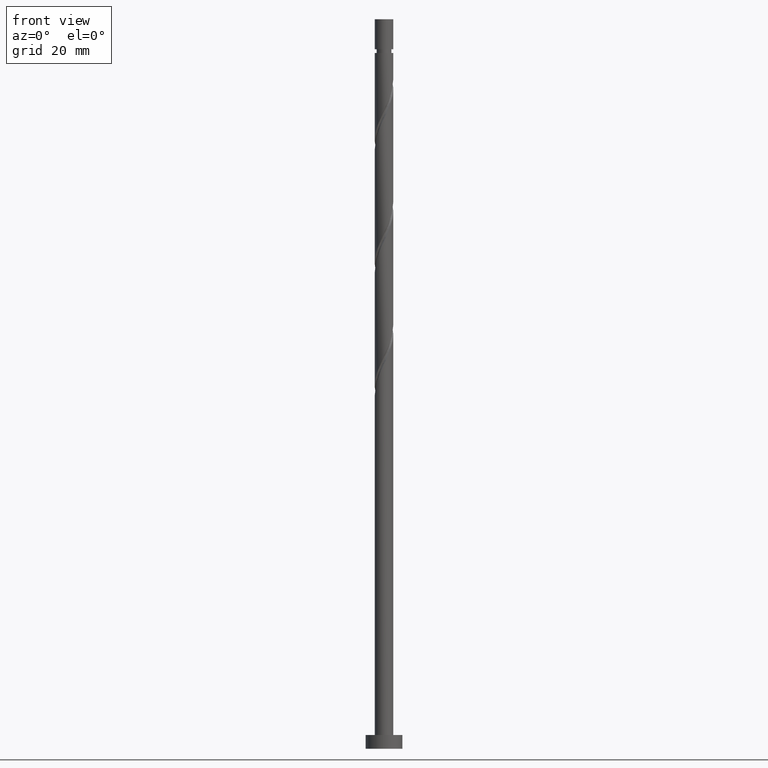
[diagram: clean part render]
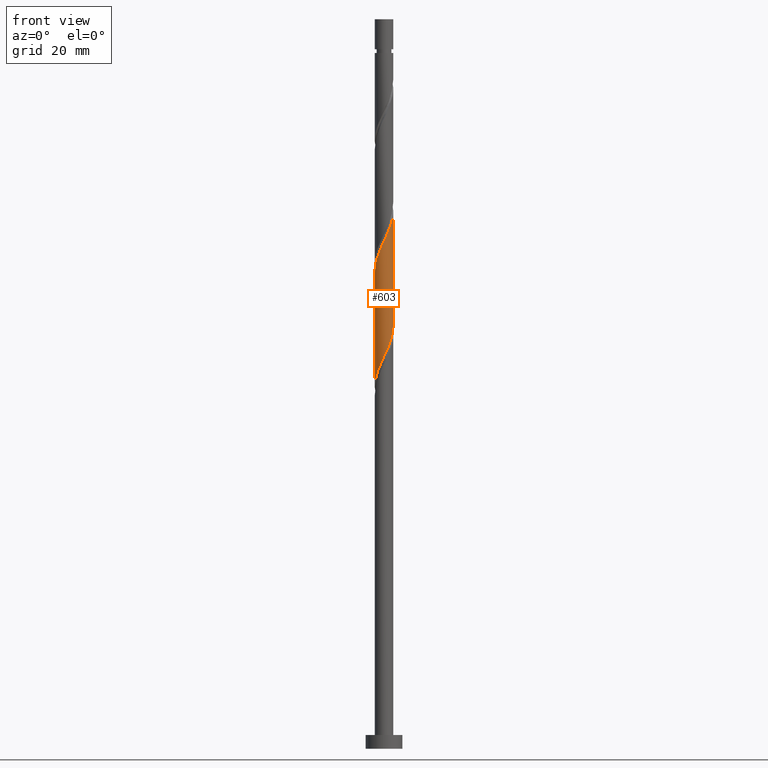
[diagram: same view with one face highlighted and labeled with its STEP entity id]
A machine part, front view. The second image highlights one B-rep face of the part: STEP entity #603.
In plain terms, the highlighted cylindrical surface (edge-blend (fillet) strip) has radius 2 mm, axis along (-0, -0, -1).
Its self-contained STEP definition (entity closure, byte-faithful):
#15 =( BOUNDED_CURVE ( )  B_SPLINE_CURVE ( 2, ( #449, #1374, #1240, #845, #1617, #1106, #193, #1084, #1357, #1608, #1231, #953, #65, #1224, #971, #853, #822, #1364, #597, #1470, #206, #1092, #78, #1342, #71 ),
 .UNSPECIFIED., .F., .T. ) 
 B_SPLINE_CURVE_WITH_KNOTS ( ( 3, 2, 2, 2, 2, 2, 2, 2, 2, 2, 2, 2, 3 ),
 ( 0.8045252162417514397, 0.8068181818181817677, 0.8181818181818182323, 0.8295454545454545858, 0.8409090909090909394, 0.8522727272727272929, 0.8636363636363636465, 0.8750000000000000000, 0.8863636363636363535, 0.8977272727272727071, 0.9090909090909090606, 0.9204545454545454142, 0.9295252162417516617 ),
 .UNSPECIFIED. ) 
 CURVE ( )  GEOMETRIC_REPRESENTATION_ITEM ( )  RATIONAL_B_SPLINE_CURVE ( ( 0.9061101570135619010, 0.9072237824201440093, 0.9090909090909213841, 0.8998376744372236224, 0.9090909090909213841, 0.8998376744372236224, 0.9090909090909213841, 0.8998376744372236224, 0.9090909090909213841, 0.8998376744372236224, 0.9090909090909213841, 0.8998376744372236224, 0.9090909090909213841, 0.8998376744372236224, 0.9090909090909213841, 0.8998376744372236224, 0.9090909090909213841, 0.8998376744372236224, 0.9090909090909213841, 0.8998376744372236224, 0.9090909090909213841, 0.8998376744372236224, 0.9090909090909213841, 0.9017048011080007752, 0.9061101570135621230 ) ) 
 REPRESENTATION_ITEM ( '' )  );
#57 = VECTOR ( 'NONE', #486, 1000.000000000000000 ) ;
#63 = CARTESIAN_POINT ( 'NONE',  ( 0.1161895186125001672, -2.017223038501451349, 110.3968388245910717 ) ) ;
#65 = CARTESIAN_POINT ( 'NONE',  ( 0.1703224295138019428, -1.992734370156874713, 85.54835397610619907 ) ) ;
#71 = CARTESIAN_POINT ( 'NONE',  ( -2.000000000000000000, 1.734991201605581417E-15, 78.51902057661922640 ) ) ;
#78 = CARTESIAN_POINT ( 'NONE',  ( -1.948211798543799889, -0.4521844623765077786, 79.48774791550016516 ) ) ;
#79 =( BOUNDED_CURVE ( )  B_SPLINE_CURVE ( 2, ( #580, #1236, #841, #1361, #1339, #1598, #454, #1109, #702, #1614, #467, #962, #1213, #63, #571, #133, #919, #1242, #1438, #560, #1209, #1336, #668, #1059, #1077 ),
 .UNSPECIFIED., .F., .T. ) 
 B_SPLINE_CURVE_WITH_KNOTS ( ( 3, 2, 2, 2, 2, 2, 2, 2, 2, 2, 2, 2, 3 ),
 ( 0.3045252162417510511, 0.3068181818181817677, 0.3181818181818182323, 0.3295454545454545858, 0.3409090909090909394, 0.3522727272727272929, 0.3636363636363636465, 0.3750000000000000000, 0.3863636363636363535, 0.3977272727272727071, 0.4090909090909090606, 0.4204545454545454142, 0.4295252162417512731 ),
 .UNSPECIFIED. ) 
 CURVE ( )  GEOMETRIC_REPRESENTATION_ITEM ( )  RATIONAL_B_SPLINE_CURVE ( ( 0.9061101570135690064, 0.9072237824201512257, 0.9090909090909289336, 0.8998376744372310609, 0.9090909090909289336, 0.8998376744372310609, 0.9090909090909289336, 0.8998376744372310609, 0.9090909090909289336, 0.8998376744372310609, 0.9090909090909289336, 0.8998376744372310609, 0.9090909090909289336, 0.8998376744372310609, 0.9090909090909289336, 0.8998376744372310609, 0.9090909090909289336, 0.8998376744372310609, 0.9090909090909289336, 0.8998376744372310609, 0.9090909090909289336, 0.8998376744372310609, 0.9090909090909289336, 0.9017048011080086578, 0.9061101570135692285 ) ) 
 REPRESENTATION_ITEM ( '' )  );
#89 = FACE_OUTER_BOUND ( 'NONE', #606, .T. ) ;
#91 = ORIENTED_EDGE ( 'NONE', *, *, #1368, .F. ) ;
#133 = CARTESIAN_POINT ( 'NONE',  ( 0.6798004310727964183, -1.902776961498555464, 111.6089600367122614 ) ) ;
#181 = EDGE_CURVE ( 'NONE', #340, #552, #79, .T. ) ;
#193 = CARTESIAN_POINT ( 'NONE',  ( 1.617545623245911779, -1.176242388590886367, 89.18471761246985352 ) ) ;
#206 = CARTESIAN_POINT ( 'NONE',  ( -1.741900447066337954, -0.9827425057002935338, 80.69986912762136910 ) ) ;
#257 = CARTESIAN_POINT ( 'NONE',  ( 2.000000000000003553, 1.046977449244738821E-15, 116.8201116180174495 ) ) ;
#306 = LINE ( 'NONE', #814, #1235 ) ;
#340 = VERTEX_POINT ( 'NONE', #1313 ) ;
#384 = DIRECTION ( 'NONE',  ( -0.000000000000000000, -0.000000000000000000, -1.000000000000000000 ) ) ;
#449 = CARTESIAN_POINT ( 'NONE',  ( 1.999999999999999556, -2.191174233062221259E-15, 91.85235390995255500 ) ) ;
#454 = CARTESIAN_POINT ( 'NONE',  ( -1.617545623245914443, -1.176242388590888366, 106.1544145821668224 ) ) ;
#467 = CARTESIAN_POINT ( 'NONE',  ( -0.7248413235775382768, -1.864029252891266530, 108.5786570064092444 ) ) ;
#486 = DIRECTION ( 'NONE',  ( -0.000000000000000000, -0.000000000000000000, -1.000000000000000000 ) ) ;
#504 = CARTESIAN_POINT ( 'NONE',  ( 0.000000000000000000, 0.000000000000000000, 158.3300000000000125 ) ) ;
#513 = ORIENTED_EDGE ( 'NONE', *, *, #1270, .F. ) ;
#541 = CARTESIAN_POINT ( 'NONE',  ( -2.000000000000000000, 1.734991201605581417E-15, 78.51902057661922640 ) ) ;
#552 = VERTEX_POINT ( 'NONE', #257 ) ;
#560 = CARTESIAN_POINT ( 'NONE',  ( 1.600603406160407305, -1.233189980288575738, 114.0332024609547119 ) ) ;
#571 = CARTESIAN_POINT ( 'NONE',  ( 0.3979949748426481193, -1.960000000000002629, 111.0028994306516381 ) ) ;
#580 = CARTESIAN_POINT ( 'NONE',  ( -2.000000000000003553, 4.419740517883147980E-15, 103.4867782846840925 ) ) ;
#597 = CARTESIAN_POINT ( 'NONE',  ( -1.394470680848406419, -1.433684595806965500, 81.91199033974257304 ) ) ;
#603 = ADVANCED_FACE ( 'NONE', ( #89 ), #607, .T. ) ;
#606 = EDGE_LOOP ( 'NONE', ( #513, #1182, #1272, #91 ) ) ;
#607 = CYLINDRICAL_SURFACE ( 'NONE', #1319, 2.000000000000000000 ) ;
#668 = CARTESIAN_POINT ( 'NONE',  ( 1.948211798543802775, -0.4521844623765089999, 115.8513842791364965 ) ) ;
#702 = CARTESIAN_POINT ( 'NONE',  ( -1.220637884402356876, -1.584311571365225380, 107.3665357942879979 ) ) ;
#814 = CARTESIAN_POINT ( 'NONE',  ( 2.000000000000000000, 2.449293598294705921E-16, 158.3300000000000125 ) ) ;
#822 = CARTESIAN_POINT ( 'NONE',  ( -0.9340691933046018081, -1.768478086411955141, 83.12411155186381961 ) ) ;
#841 = CARTESIAN_POINT ( 'NONE',  ( -1.996690616564942955, -0.1150068768444765244, 103.7301721579243576 ) ) ;
#845 = CARTESIAN_POINT ( 'NONE',  ( 1.980155124014550738, -0.4020876473299553888, 91.00289943065168075 ) ) ;
#853 = CARTESIAN_POINT ( 'NONE',  ( -0.6798004310727958632, -1.902776961498551467, 83.73017215792437185 ) ) ;
#864 = LINE ( 'NONE', #1265, #57 ) ;
#919 = CARTESIAN_POINT ( 'NONE',  ( 0.9340691933046020301, -1.768478086411958028, 112.2150206427728421 ) ) ;
#953 = CARTESIAN_POINT ( 'NONE',  ( 0.4568343776401059264, -1.968245701812300519, 86.15441458216682236 ) ) ;
#962 = CARTESIAN_POINT ( 'NONE',  ( -0.4568343776401067036, -1.968245701812304516, 109.1847176124698677 ) ) ;
#971 = CARTESIAN_POINT ( 'NONE',  ( -0.3979949748426483969, -1.959999999999999964, 84.33623276398498092 ) ) ;
#1019 = DIRECTION ( 'NONE',  ( -1.000000000000000000, 0.000000000000000000, 0.000000000000000000 ) ) ;
#1049 = DIRECTION ( 'NONE',  ( -0.000000000000000000, -0.000000000000000000, -1.000000000000000000 ) ) ;
#1059 = CARTESIAN_POINT ( 'NONE',  ( 2.000000000000003109, -0.2290578547702470102, 116.3341516650461358 ) ) ;
#1077 = CARTESIAN_POINT ( 'NONE',  ( 2.000000000000003553, 1.046977449244738821E-15, 116.8201116180174495 ) ) ;
#1084 = CARTESIAN_POINT ( 'NONE',  ( 1.448427499289742348, -1.408810338760219549, 88.57865700640923023 ) ) ;
#1092 = CARTESIAN_POINT ( 'NONE',  ( -1.883197487972271267, -0.7322950311120137723, 80.09380852156077424 ) ) ;
#1106 = CARTESIAN_POINT ( 'NONE',  ( 1.786663747202081876, -0.9436744384215536297, 89.79077821853041996 ) ) ;
#1107 = VERTEX_POINT ( 'NONE', #541 ) ;
#1109 = CARTESIAN_POINT ( 'NONE',  ( -1.448427499289744125, -1.408810338760221548, 106.7604751882274172 ) ) ;
#1141 = CARTESIAN_POINT ( 'NONE',  ( 1.999999999999999556, -2.191174233062221259E-15, 91.85235390995256921 ) ) ;
#1182 = ORIENTED_EDGE ( 'NONE', *, *, #181, .F. ) ;
#1209 = CARTESIAN_POINT ( 'NONE',  ( 1.741900447066339952, -0.9827425057002954212, 114.6392630670152499 ) ) ;
#1213 = CARTESIAN_POINT ( 'NONE',  ( -0.1703224295138032196, -1.992734370156877821, 109.7907782185304200 ) ) ;
#1224 = CARTESIAN_POINT ( 'NONE',  ( -0.1161895186125009444, -2.017223038501448240, 84.94229337004560421 ) ) ;
#1231 = CARTESIAN_POINT ( 'NONE',  ( 0.7248413235775362784, -1.864029252891264088, 86.76047518822744564 ) ) ;
#1235 = VECTOR ( 'NONE', #1049, 1000.000000000000000 ) ;
#1236 = CARTESIAN_POINT ( 'NONE',  ( -2.000000000000003553, -0.05755105304763839108, 103.6088762894023034 ) ) ;
#1240 = CARTESIAN_POINT ( 'NONE',  ( 1.996690616564939402, -0.1150068768444772321, 91.60896003671228982 ) ) ;
#1242 = CARTESIAN_POINT ( 'NONE',  ( 1.188337955536409529, -1.634179211325361258, 112.8210812488334653 ) ) ;
#1265 = CARTESIAN_POINT ( 'NONE',  ( -2.000000000000000000, 0.000000000000000000, 158.3300000000000125 ) ) ;
#1270 = EDGE_CURVE ( 'NONE', #552, #1554, #306, .T. ) ;
#1272 = ORIENTED_EDGE ( 'NONE', *, *, #1541, .T. ) ;
#1313 = CARTESIAN_POINT ( 'NONE',  ( -2.000000000000003553, 4.419740517883147980E-15, 103.4867782846840925 ) ) ;
#1319 = AXIS2_PLACEMENT_3D ( 'NONE', #504, #384, #1019 ) ;
#1336 = CARTESIAN_POINT ( 'NONE',  ( 1.883197487972274820, -0.7322950311120153266, 115.2453236730759016 ) ) ;
#1339 = CARTESIAN_POINT ( 'NONE',  ( -1.883409435608319304, -0.6728810428757547868, 104.9422933700456042 ) ) ;
#1342 = CARTESIAN_POINT ( 'NONE',  ( -2.000000000000002220, -0.2290578547702366297, 79.00498052959054007 ) ) ;
#1357 = CARTESIAN_POINT ( 'NONE',  ( 1.220637884402353768, -1.584311571365224047, 87.97259640034864958 ) ) ;
#1361 = CARTESIAN_POINT ( 'NONE',  ( -1.980155124014554291, -0.4020876473299552778, 104.3362327639849809 ) ) ;
#1364 = CARTESIAN_POINT ( 'NONE',  ( -1.188337955536406865, -1.634179211325358594, 82.51805094580319633 ) ) ;
#1368 = EDGE_CURVE ( 'NONE', #1554, #1107, #15, .T. ) ;
#1374 = CARTESIAN_POINT ( 'NONE',  ( 1.999999999999999556, -0.05755105304764900759, 91.73025590523434403 ) ) ;
#1438 = CARTESIAN_POINT ( 'NONE',  ( 1.394470680848407751, -1.433684595806967943, 113.4271418548940886 ) ) ;
#1470 = CARTESIAN_POINT ( 'NONE',  ( -1.600603406160404418, -1.233189980288572629, 81.30592973368197818 ) ) ;
#1541 = EDGE_CURVE ( 'NONE', #340, #1107, #864, .T. ) ;
#1554 = VERTEX_POINT ( 'NONE', #1141 ) ;
#1598 = CARTESIAN_POINT ( 'NONE',  ( -1.786663747202085206, -0.9436744384215547399, 105.5483539761062133 ) ) ;
#1608 = CARTESIAN_POINT ( 'NONE',  ( 0.9928482695149667414, -1.759812803970227879, 87.36653579428804051 ) ) ;
#1614 = CARTESIAN_POINT ( 'NONE',  ( -0.9928482695149695170, -1.759812803970230322, 107.9725964003486780 ) ) ;
#1617 = CARTESIAN_POINT ( 'NONE',  ( 1.883409435608316418, -0.6728810428757545647, 90.39683882459104325 ) ) ;